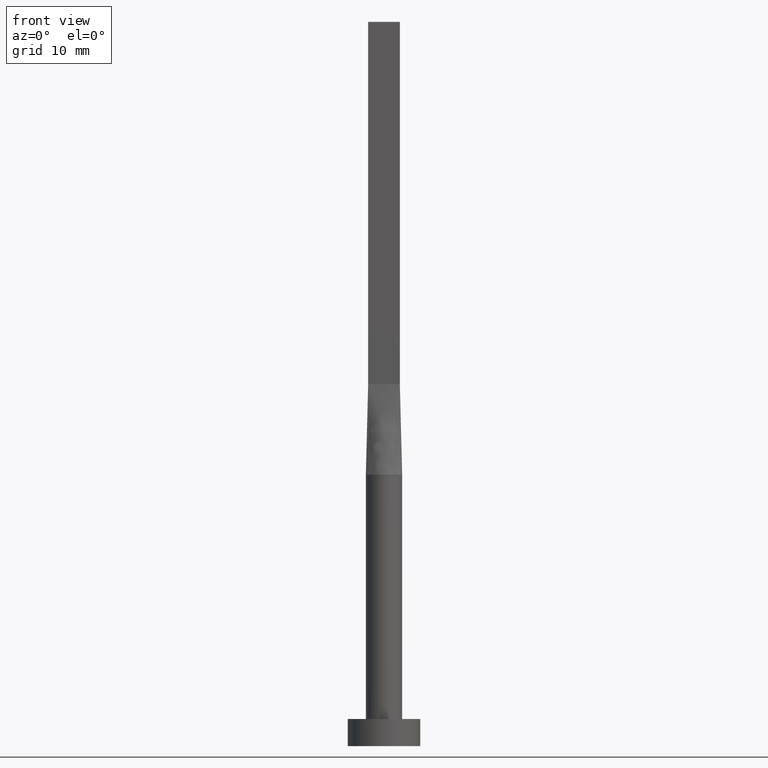
[diagram: clean part render]
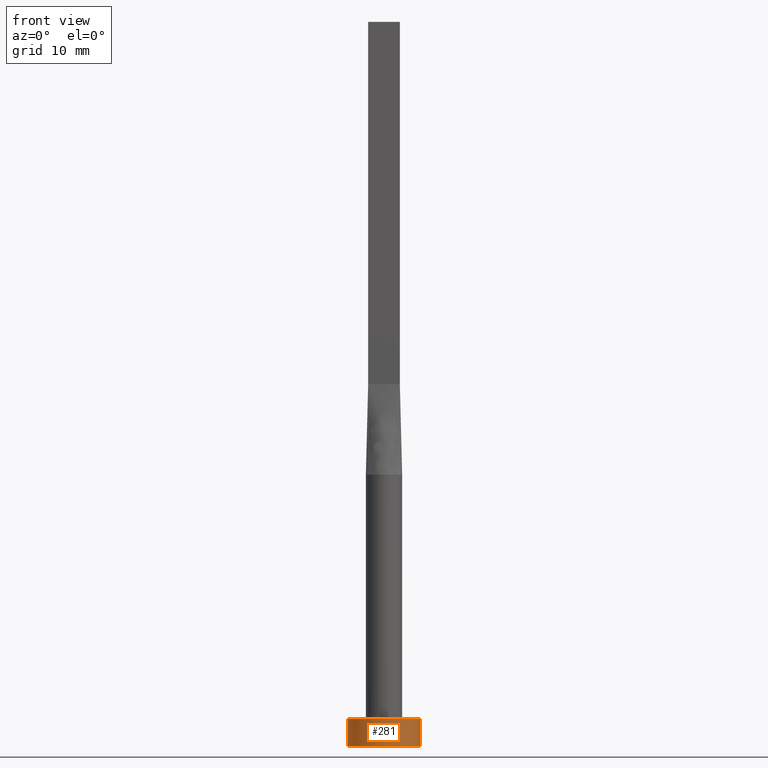
[diagram: same view with one face highlighted and labeled with its STEP entity id]
A machine part, front view. The second image highlights one B-rep face of the part: STEP entity #281.
In plain terms, the highlighted cylindrical surface (edge-blend (fillet) strip) has radius 4 mm, axis along (-0, -0, -1).
Its self-contained STEP definition (entity closure, byte-faithful):
#11 = AXIS2_PLACEMENT_3D ( 'NONE', #540, #271, #178 ) ;
#17 = CIRCLE ( 'NONE', #454, 4.000000000000000000 ) ;
#19 = EDGE_CURVE ( 'NONE', #165, #439, #571, .T. ) ;
#32 = LINE ( 'NONE', #296, #512 ) ;
#107 = VERTEX_POINT ( 'NONE', #262 ) ;
#119 = DIRECTION ( 'NONE',  ( -0.000000000000000000, -0.000000000000000000, -1.000000000000000000 ) ) ;
#125 = CARTESIAN_POINT ( 'NONE',  ( 4.000000000000000000, 4.898587196589412829E-16, 3.000000000000000000 ) ) ;
#165 = VERTEX_POINT ( 'NONE', #125 ) ;
#178 = DIRECTION ( 'NONE',  ( 1.000000000000000000, 0.000000000000000000, 0.000000000000000000 ) ) ;
#212 = ORIENTED_EDGE ( 'NONE', *, *, #518, .T. ) ;
#229 = CARTESIAN_POINT ( 'NONE',  ( 0.000000000000000000, 0.000000000000000000, 0.000000000000000000 ) ) ;
#247 = FACE_OUTER_BOUND ( 'NONE', #317, .T. ) ;
#254 = CARTESIAN_POINT ( 'NONE',  ( 4.000000000000000000, 4.898587196589412829E-16, 3.000000000000000000 ) ) ;
#262 = CARTESIAN_POINT ( 'NONE',  ( -4.000000000000000000, 0.000000000000000000, 0.000000000000000000 ) ) ;
#271 = DIRECTION ( 'NONE',  ( 0.000000000000000000, 0.000000000000000000, 1.000000000000000000 ) ) ;
#279 = ORIENTED_EDGE ( 'NONE', *, *, #19, .F. ) ;
#281 = ADVANCED_FACE ( 'NONE', ( #247 ), #425, .T. ) ;
#296 = CARTESIAN_POINT ( 'NONE',  ( -4.000000000000000000, 0.000000000000000000, 3.000000000000000000 ) ) ;
#317 = EDGE_LOOP ( 'NONE', ( #279, #466, #334, #212 ) ) ;
#334 = ORIENTED_EDGE ( 'NONE', *, *, #390, .T. ) ;
#338 = DIRECTION ( 'NONE',  ( -1.000000000000000000, 0.000000000000000000, 0.000000000000000000 ) ) ;
#370 = CIRCLE ( 'NONE', #11, 4.000000000000000000 ) ;
#383 = VERTEX_POINT ( 'NONE', #435 ) ;
#390 = EDGE_CURVE ( 'NONE', #383, #107, #32, .T. ) ;
#425 = CYLINDRICAL_SURFACE ( 'NONE', #509, 4.000000000000000000 ) ;
#435 = CARTESIAN_POINT ( 'NONE',  ( -4.000000000000000000, 0.000000000000000000, 3.000000000000000000 ) ) ;
#439 = VERTEX_POINT ( 'NONE', #529 ) ;
#454 = AXIS2_PLACEMENT_3D ( 'NONE', #229, #580, #531 ) ;
#466 = ORIENTED_EDGE ( 'NONE', *, *, #510, .F. ) ;
#499 = CARTESIAN_POINT ( 'NONE',  ( 0.000000000000000000, 0.000000000000000000, 3.000000000000000000 ) ) ;
#509 = AXIS2_PLACEMENT_3D ( 'NONE', #499, #565, #338 ) ;
#510 = EDGE_CURVE ( 'NONE', #383, #165, #370, .T. ) ;
#512 = VECTOR ( 'NONE', #119, 1000.000000000000000 ) ;
#516 = DIRECTION ( 'NONE',  ( -0.000000000000000000, -0.000000000000000000, -1.000000000000000000 ) ) ;
#518 = EDGE_CURVE ( 'NONE', #107, #439, #17, .T. ) ;
#521 = VECTOR ( 'NONE', #516, 1000.000000000000000 ) ;
#529 = CARTESIAN_POINT ( 'NONE',  ( 4.000000000000000000, 4.898587196589412829E-16, 0.000000000000000000 ) ) ;
#531 = DIRECTION ( 'NONE',  ( 1.000000000000000000, 0.000000000000000000, 0.000000000000000000 ) ) ;
#540 = CARTESIAN_POINT ( 'NONE',  ( 0.000000000000000000, 0.000000000000000000, 3.000000000000000000 ) ) ;
#565 = DIRECTION ( 'NONE',  ( -0.000000000000000000, -0.000000000000000000, -1.000000000000000000 ) ) ;
#571 = LINE ( 'NONE', #254, #521 ) ;
#580 = DIRECTION ( 'NONE',  ( 0.000000000000000000, 0.000000000000000000, 1.000000000000000000 ) ) ;